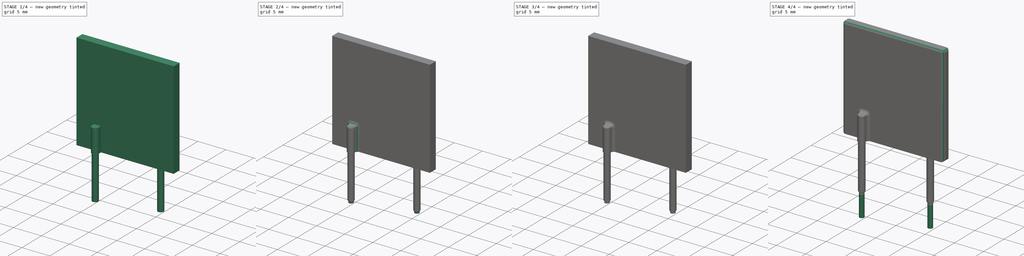
[diagram: build sequence overview — one tinted view per stage of 4, left to right]
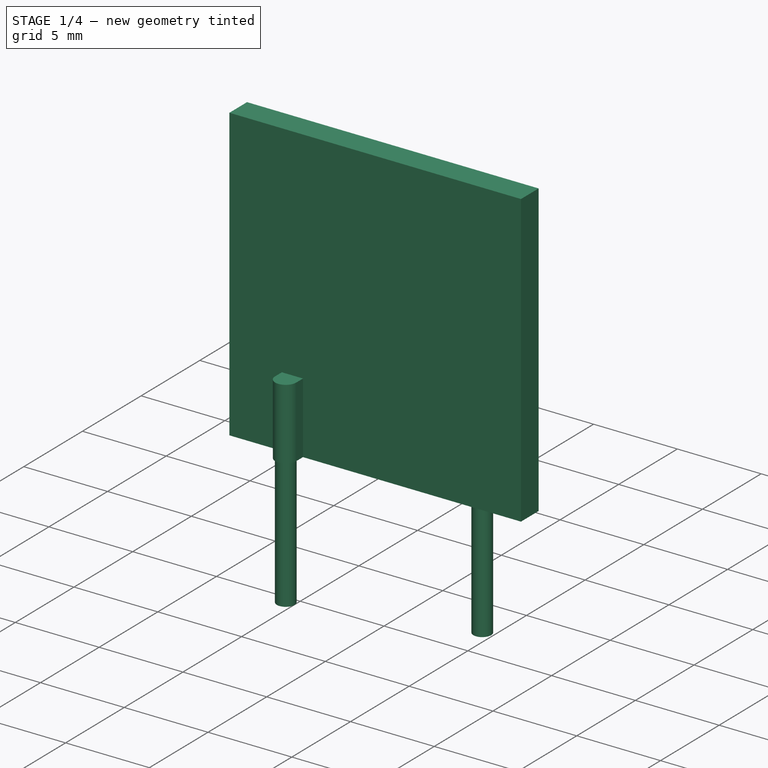
[diagram: stage 1 of 4 — iso view after this stage's code; geometry added in this stage tinted green]
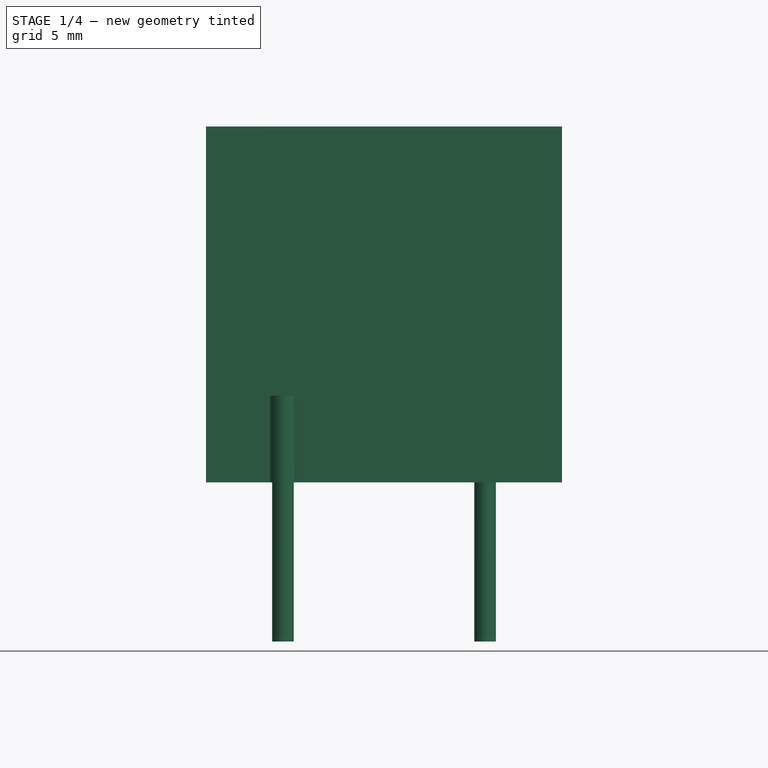
[diagram: stage 1 of 4 — front view after this stage's code; geometry added in this stage tinted green]
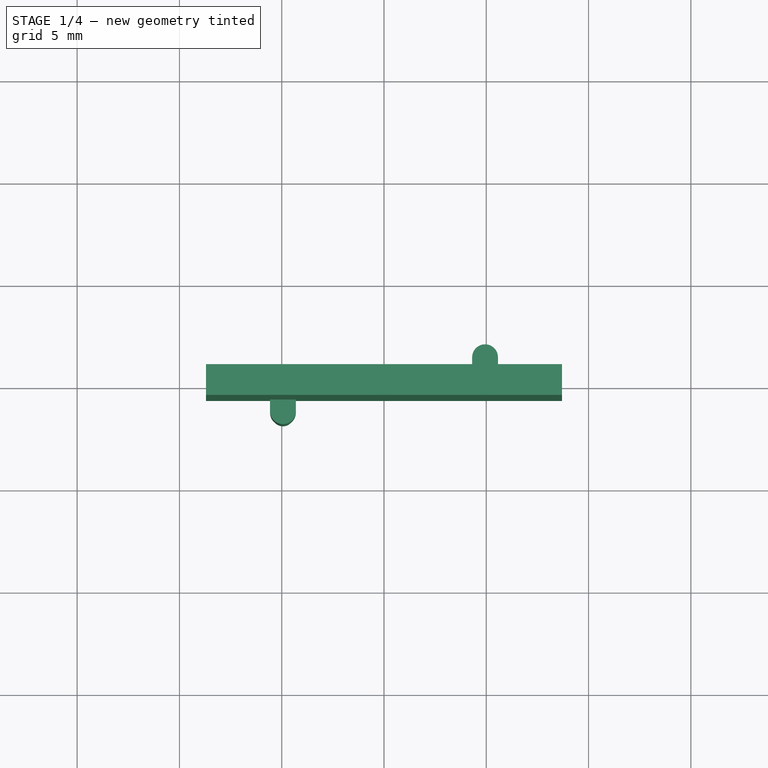
[diagram: stage 1 of 4 — top view after this stage's code; geometry added in this stage tinted green]
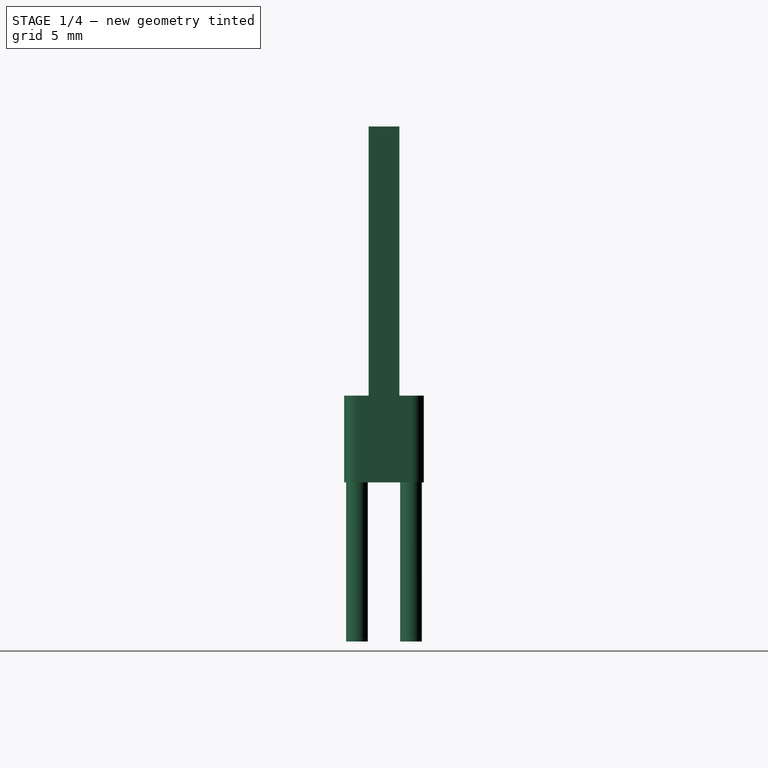
[diagram: stage 1 of 4 — right view after this stage's code; geometry added in this stage tinted green]
FCSTD DOCUMENT  (FreeCAD 0.14R3702 (Git))
Label: fuse-MF-R500
License: CC-BY 3.0
LicenseURL: http://creativecommons.org/licenses/by/3.0/
objects: Part::Fillet×6, Sketcher::SketchObject×5, PartDesign::Pad×5, Part::Feature×1
note: 22 computed .brp shape members not serialized (recipe doc carries the construction recipe); baked Part::Feature solids carry a one-line shape summary decoded from their .brp

FEATURE [Sketcher::SketchObject] Sketch  label="fuse-body-sketch"
  Placement = pos=(0,0,0) rot=(1,0,0;1.5708rad)
  sketch-geometry (4):
    g0: LineSegment StartX=-8.7 StartY=25.18 StartZ=0 EndX=8.7 EndY=25.18 EndZ=0
    g1: LineSegment StartX=8.7 StartY=25.18 StartZ=0 EndX=8.7 EndY=7.78 EndZ=0
    g2: LineSegment StartX=8.7 StartY=7.78 StartZ=0 EndX=-8.7 EndY=7.78 EndZ=0
    g3: LineSegment StartX=-8.7 StartY=7.78 StartZ=0 EndX=-8.7 EndY=25.18 EndZ=0
  constraints (12):
    c: Coincident(g0,g1)
    c: Coincident(g1,g2)
    c: Coincident(g2,g3)
    c: Coincident(g3,g0)
    c: Horizontal(g0)
    c: Horizontal(g2)
    c: Vertical(g1)
    c: Vertical(g3)
    c: Symmetric(g0,g0,g-2)
    c: Equal(g3,g0)
    c: DistanceX(g0) = 17.4
    c: DistanceY(g-1,g1) = 7.78
FEATURE [PartDesign::Pad] Pad  label="fuse-body"
  Length = 1.5
  Length2 = 100
  Midplane = true
  Placement = pos=(0,0,0) rot=(1,0,0;1.5708rad)
  Sketch = -> Sketch
  Type = 0
FEATURE [Sketcher::SketchObject] Sketch001  label="pin-base-sketch"
  ExternalGeometry = -> [Pad]
  Placement = pos=(0,0,7.78) rot=(1,0,0;3.14159rad)
  Support = -> Pad [Face3]
  sketch-geometry (10):
    g0: LineSegment [constr] StartX=-4.31 StartY=1.32 StartZ=0 EndX=-5.57 EndY=1.32 EndZ=0
    g1: LineSegment StartX=-5.57 StartY=1.32 StartZ=0 EndX=-5.57 EndY=0.75 EndZ=0
    g2: LineSegment StartX=-4.31 StartY=1.32 StartZ=0 EndX=-4.31 EndY=0.75 EndZ=0
    g3: LineSegment StartX=-5.57 StartY=0.75 StartZ=0 EndX=-4.31 EndY=0.75 EndZ=0
    g4: ArcOfCircle CenterX=-4.94 CenterY=1.32 CenterZ=0 NormalX=0 NormalY=0 NormalZ=1 Radius=0.63 StartAngle=0 EndAngle=3.14159
    g5: LineSegment StartX=4.31 StartY=-0.75 StartZ=0 EndX=5.57 EndY=-0.75 EndZ=0
    g6: LineSegment StartX=5.57 StartY=-0.75 StartZ=0 EndX=5.57 EndY=-1.32 EndZ=0
    g7: LineSegment [constr] StartX=5.57 StartY=-1.32 StartZ=0 EndX=4.31 EndY=-1.32 EndZ=0
    g8: LineSegment StartX=4.31 StartY=-1.32 StartZ=0 EndX=4.31 EndY=-0.75 EndZ=0
    g9: ArcOfCircle CenterX=4.94 CenterY=-1.32 CenterZ=0 NormalX=0 NormalY=0 NormalZ=1 Radius=0.63 StartAngle=3.14159 EndAngle=6.28319
  constraints (29):
    c: Horizontal(g0)
    c: Vertical(g1)
    c: PointOnObject(g1,g-3)
    c: Vertical(g2)
    c: PointOnObject(g2,g-3)
    c: Horizontal(g3)
    c: Coincident(g3,g2)
    c: Coincident(g3,g1)
    c: Coincident(g0,g1)
    c: Coincident(g0,g2)
    c: DistanceX(g-1,g2) = -4.31
    c: PointOnObject(g4,g0)
    c: Coincident(g4,g0)
    c: Coincident(g0,g4)
    c: Radius(g4) = 0.63
    c: DistanceY(g2) = -0.57
    c: Coincident(g5,g6)
    c: Coincident(g6,g7)
    c: Coincident(g7,g8)
    c: Coincident(g8,g5)
    c: Horizontal(g5)
    c: Horizontal(g7)
    c: Vertical(g6)
    c: Vertical(g8)
    c: Symmetric(g5,g2,g-1)
    c: Symmetric(g7,g0,g-1)
    c: Symmetric(g4,g9,g-1)
    c: Coincident(g7,g9)
    c: Coincident(g9,g6)
FEATURE [PartDesign::Pad] Pad001  label="pin-base"
  Length = 4.24
  Length2 = 100
  Placement = pos=(0,0,0) rot=(1,0,0;1.5708rad)
  Reversed = true
  Sketch = -> Sketch001
  Type = 0
FEATURE [Sketcher::SketchObject] Sketch002  label="pin-base2-sketch"
  ExternalGeometry = -> [Pad001]
  Placement = pos=(0,0,7.78) rot=(1,0,0;3.14159rad)
  Support = -> Pad001 [Face14]
  sketch-geometry (2):
    g0: Circle CenterX=-4.94 CenterY=1.32 CenterZ=0 NormalX=0 NormalY=0 NormalZ=1 Radius=0.53
    g1: Circle CenterX=4.94 CenterY=-1.32 CenterZ=0 NormalX=0 NormalY=0 NormalZ=1 Radius=0.53
  constraints (4):
    c: Coincident(g-3,g0)
    c: Radius(g0) = 0.53
    c: Equal(g1,g0)
    c: Symmetric(g1,g0,g-1)
FEATURE [PartDesign::Pad] Pad002  label="pin-base2"
  Length = 7.78
  Length2 = 100
  Placement = pos=(0,0,0) rot=(1,0,0;1.5708rad)
  Sketch = -> Sketch002
  Type = 0
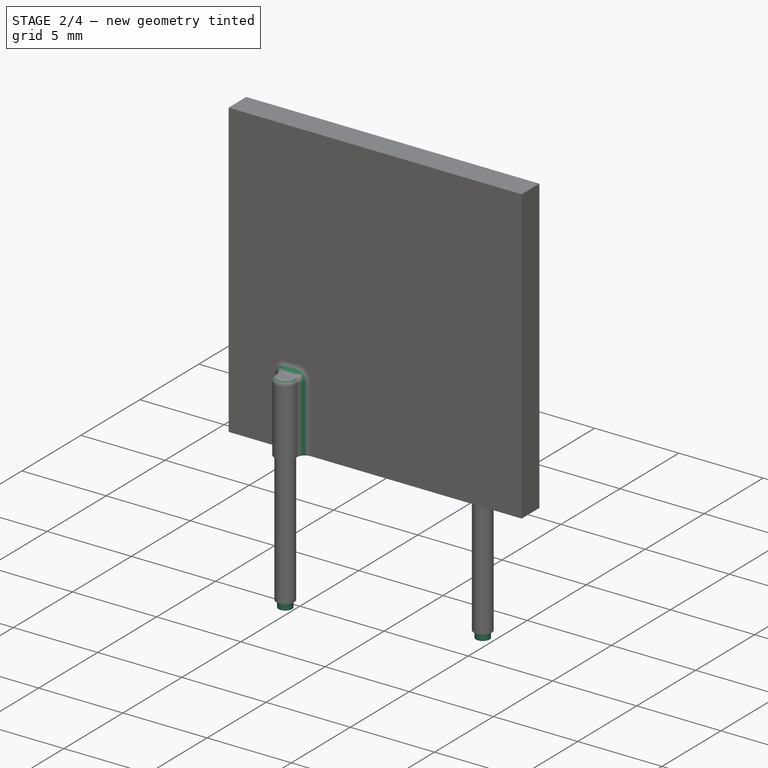
[diagram: stage 2 of 4 — iso view after this stage's code; geometry added in this stage tinted green]
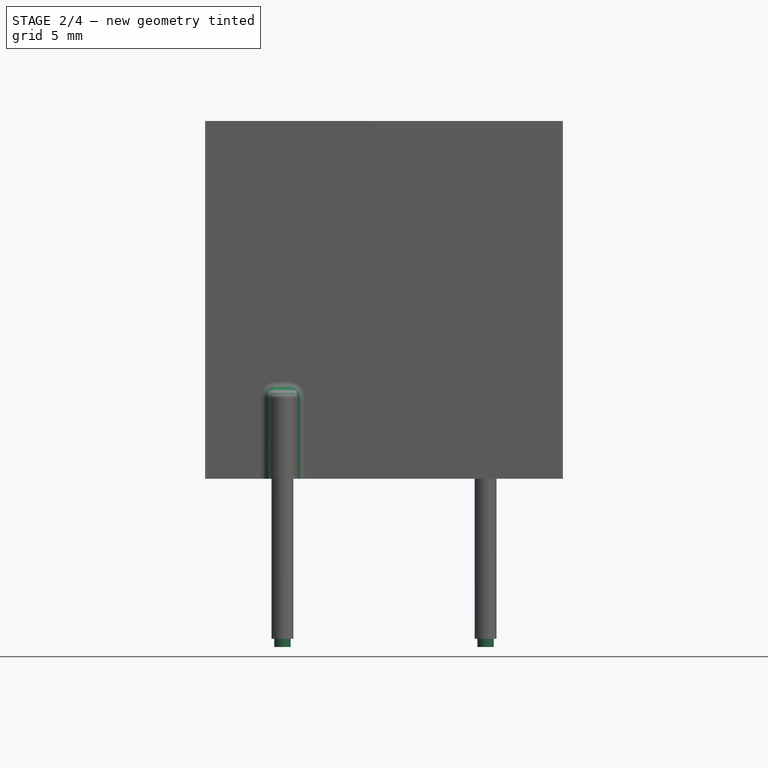
[diagram: stage 2 of 4 — front view after this stage's code; geometry added in this stage tinted green]
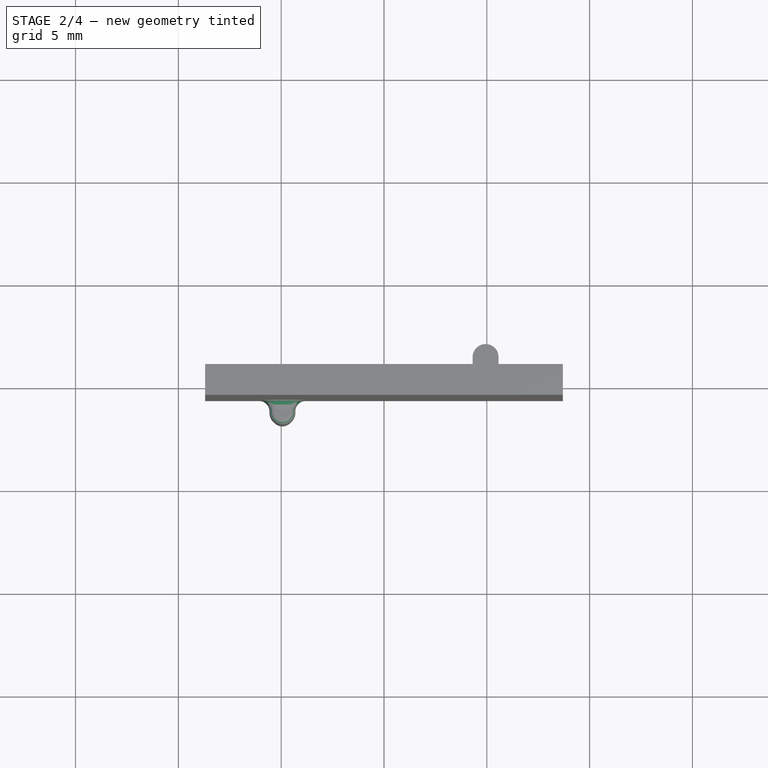
[diagram: stage 2 of 4 — top view after this stage's code; geometry added in this stage tinted green]
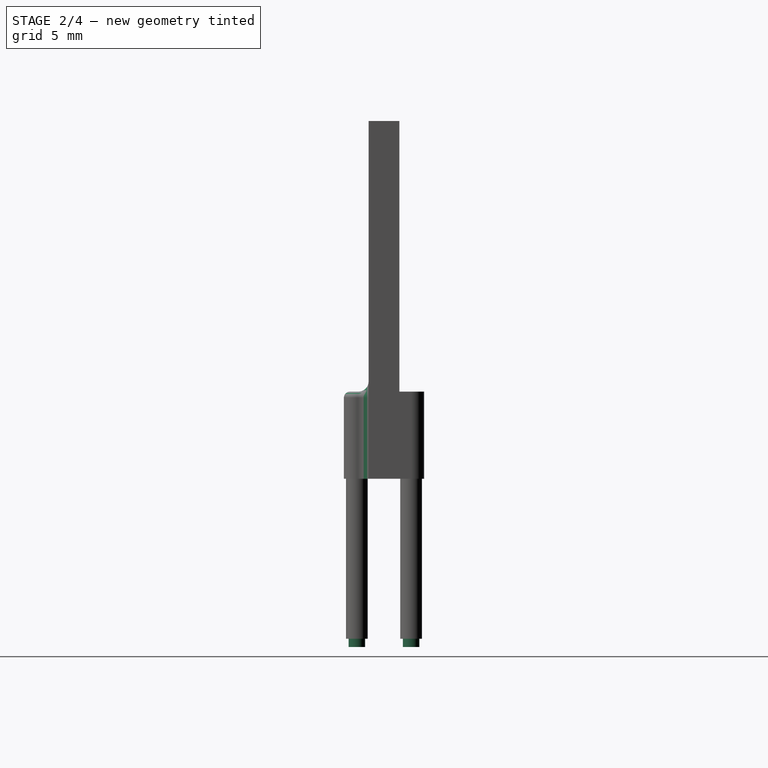
[diagram: stage 2 of 4 — right view after this stage's code; geometry added in this stage tinted green]
FEATURE [Sketcher::SketchObject] Sketch003  label="pin-base-3-sketch"
  ExternalGeometry = -> [Pad002]
  Placement = pos=(0,0,0) rot=(1,0,0;3.14159rad)
  Support = -> Pad002 [Face17]
  sketch-geometry (2):
    g0: Circle CenterX=-4.94 CenterY=1.32 CenterZ=0 NormalX=0 NormalY=0 NormalZ=1 Radius=0.4
    g1: Circle CenterX=4.94 CenterY=-1.32 CenterZ=0 NormalX=0 NormalY=0 NormalZ=1 Radius=0.4
  constraints (4):
    c: Radius(g0) = 0.4
    c: Coincident(g0,g-3)
    c: Symmetric(g1,g0,g-1)
    c: Equal(g0,g1)
FEATURE [PartDesign::Pad] Pad003  label="pin-base-3"
  Length = 0.4
  Length2 = 100
  Placement = pos=(0,0,0) rot=(1,0,0;1.5708rad)
  Sketch = -> Sketch003
  Type = 0
FEATURE [Part::Fillet] Fillet
  Base = -> Pad003
  Edges = 3 edges r=0.3: [Edge35,Edge36,Edge37]
FEATURE [Part::Fillet] Fillet001
  Base = -> Fillet
  Edges = 5 edges r=0.5: [Edge1,Edge2,Edge4,Edge6,Edge8]
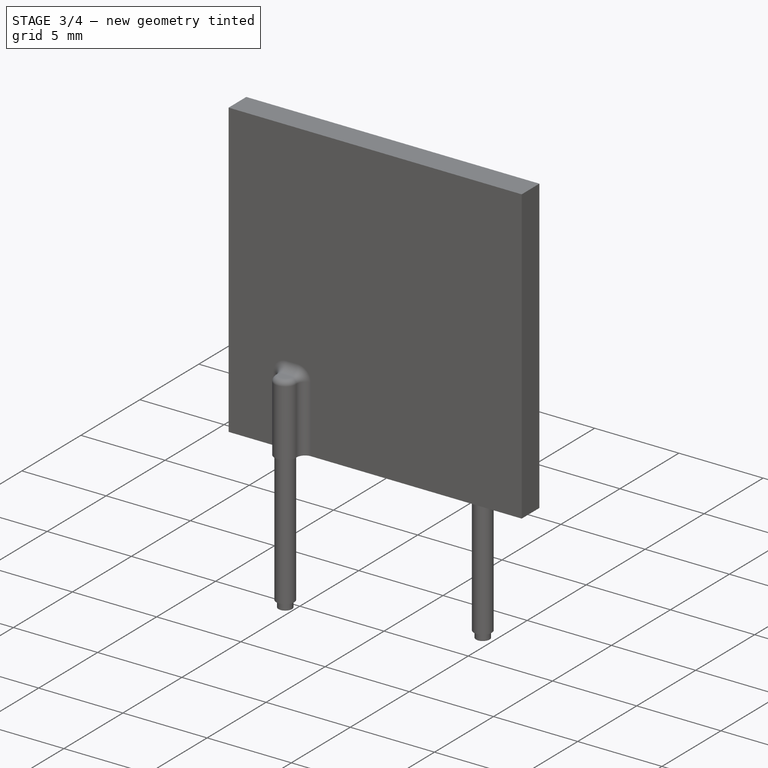
[diagram: stage 3 of 4 — iso view after this stage's code; geometry added in this stage tinted green]
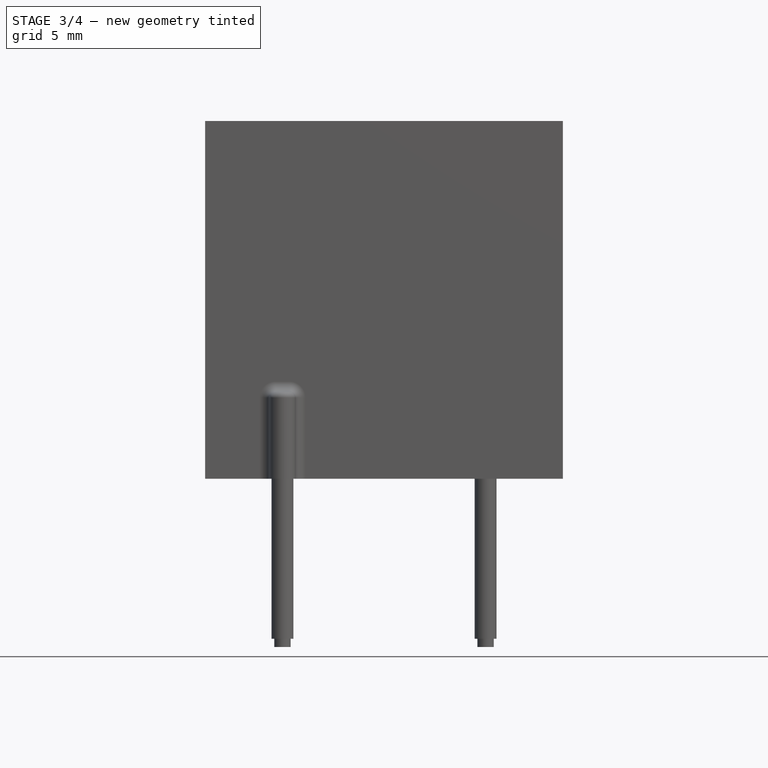
[diagram: stage 3 of 4 — front view after this stage's code; geometry added in this stage tinted green]
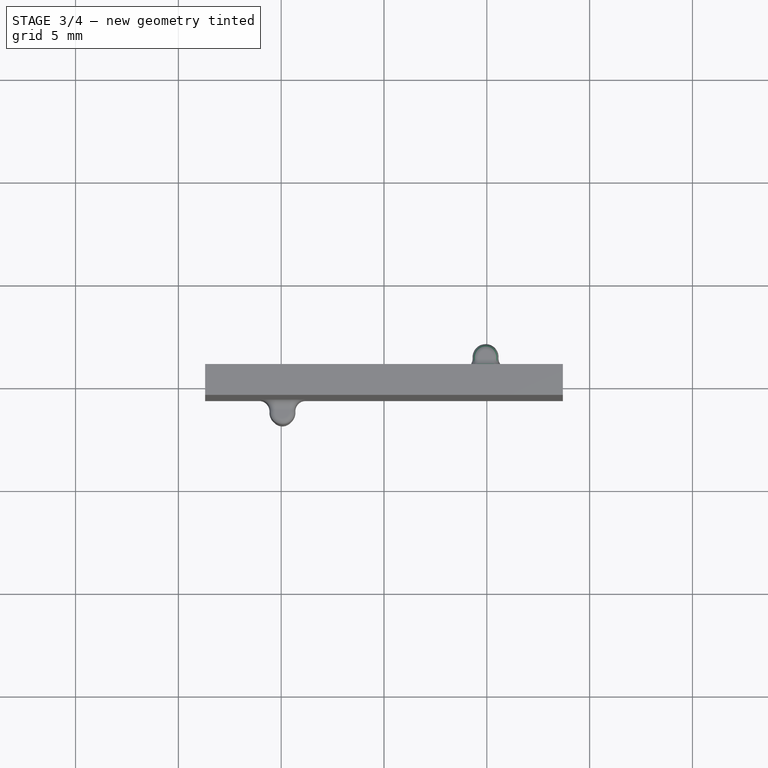
[diagram: stage 3 of 4 — top view after this stage's code; geometry added in this stage tinted green]
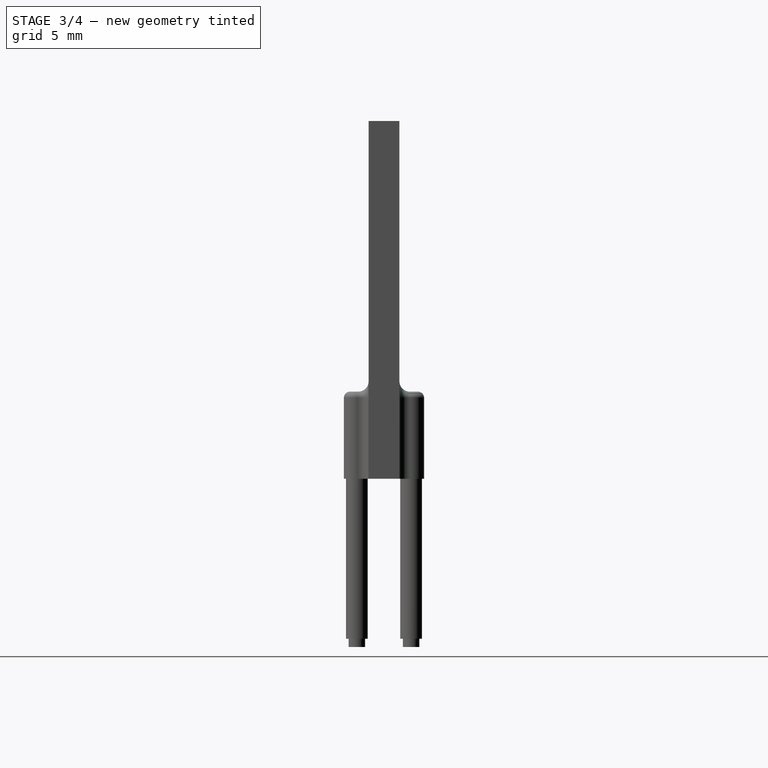
[diagram: stage 3 of 4 — right view after this stage's code; geometry added in this stage tinted green]
FEATURE [Part::Fillet] Fillet002
  Base = -> Fillet001
  Edges = 3 edges r=0.3: [Edge46,Edge50,Edge51]
FEATURE [Part::Fillet] Fillet003
  Base = -> Fillet002
  Edges = 5 edges r=0.5: [Edge1,Edge2,Edge4,Edge6,Edge8]
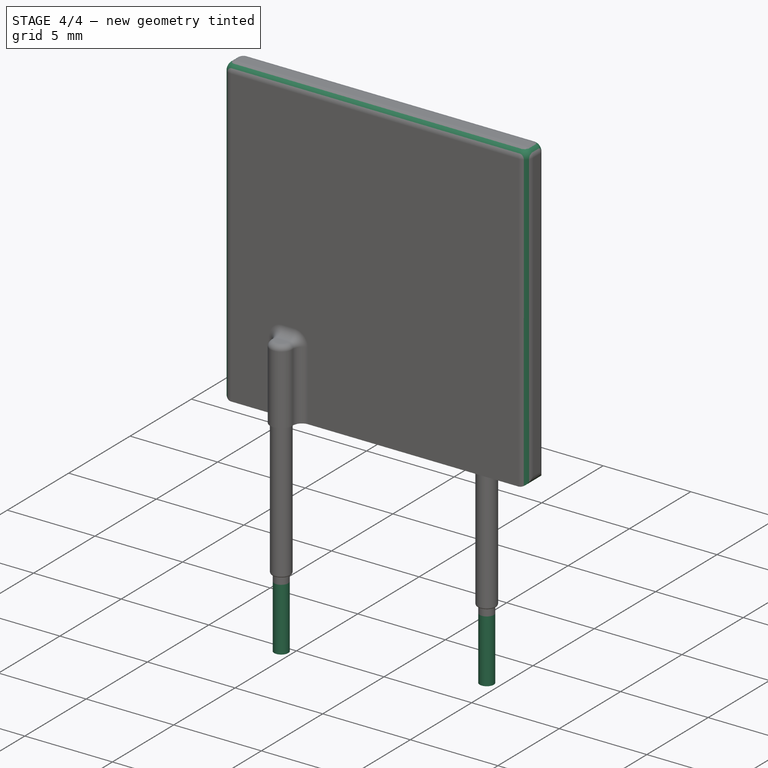
[diagram: stage 4 of 4 — iso view after this stage's code; geometry added in this stage tinted green]
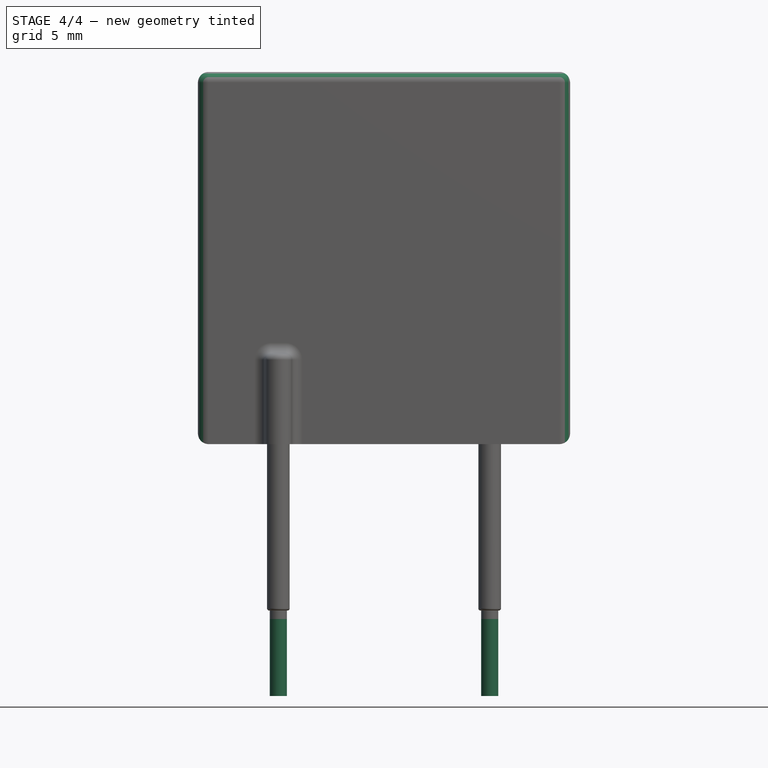
[diagram: stage 4 of 4 — front view after this stage's code; geometry added in this stage tinted green]
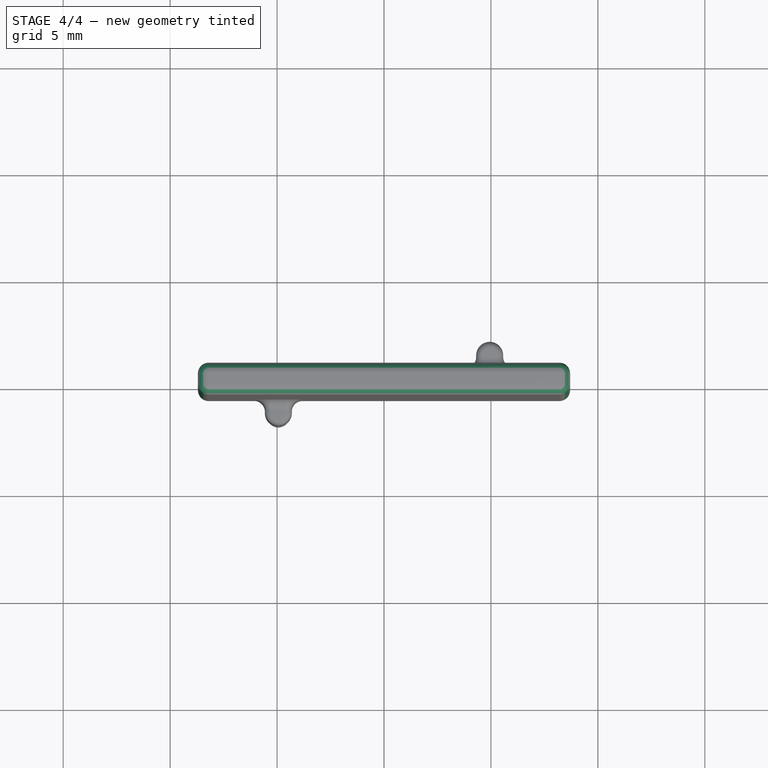
[diagram: stage 4 of 4 — top view after this stage's code; geometry added in this stage tinted green]
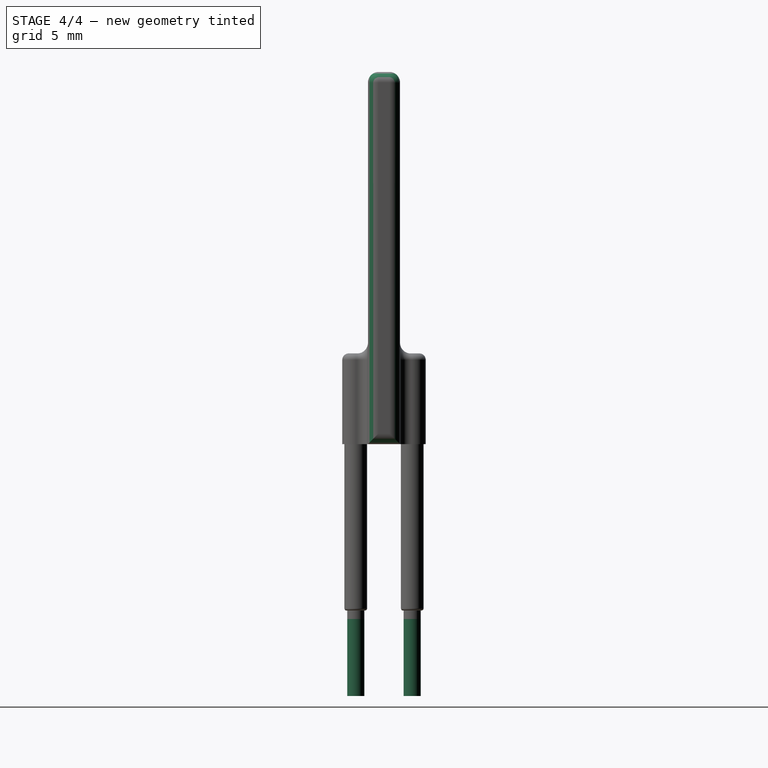
[diagram: stage 4 of 4 — right view after this stage's code; geometry added in this stage tinted green]
FEATURE [Part::Fillet] Fillet004
  Base = -> Fillet003
  Edges = 10 edges r=0.5: [Edge3,Edge5,Edge7,Edge12,Edge22,Edge29,Edge30,Edge33,Edge34,Edge37]
FEATURE [Part::Fillet] Fillet005
  Base = -> Fillet004
  Edges = 2 edges r=0.1: [Edge72,Edge74]
FEATURE [Sketcher::SketchObject] Sketch004
  ExternalGeometry = -> [Fillet005]
  Placement = pos=(0,0,-0.4) rot=(1,0,0;3.14159rad)
  Support = -> Fillet005 [Face54]
  sketch-geometry (2):
    g0: Circle CenterX=-4.94 CenterY=1.32 CenterZ=0 NormalX=0 NormalY=0 NormalZ=1 Radius=0.4
    g1: Circle CenterX=4.94 CenterY=-1.32 CenterZ=0 NormalX=0 NormalY=0 NormalZ=1 Radius=0.4
  constraints (4):
    c: Coincident(g0,g-3)
    c: Equal(g0,g-3)
    c: Symmetric(g1,g0,g-1)
    c: Equal(g1,g0)
FEATURE [PartDesign::Pad] Pad004
  Length = 3.6
  Length2 = 100
  Sketch = -> Sketch004
  Type = 0
FEATURE [Part::Feature] Pad005  label="fuse-MR-R500-final"
  shape: bbox 17.4 x 4.004 x 29.18 mm, 56 faces (baked)
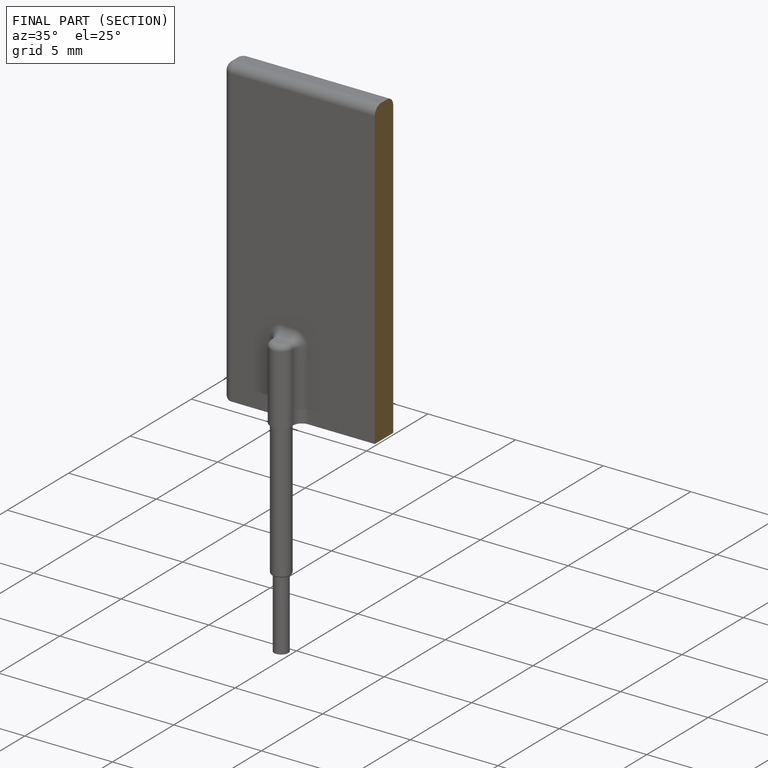
[diagram: finished part — half-section view (interior)]
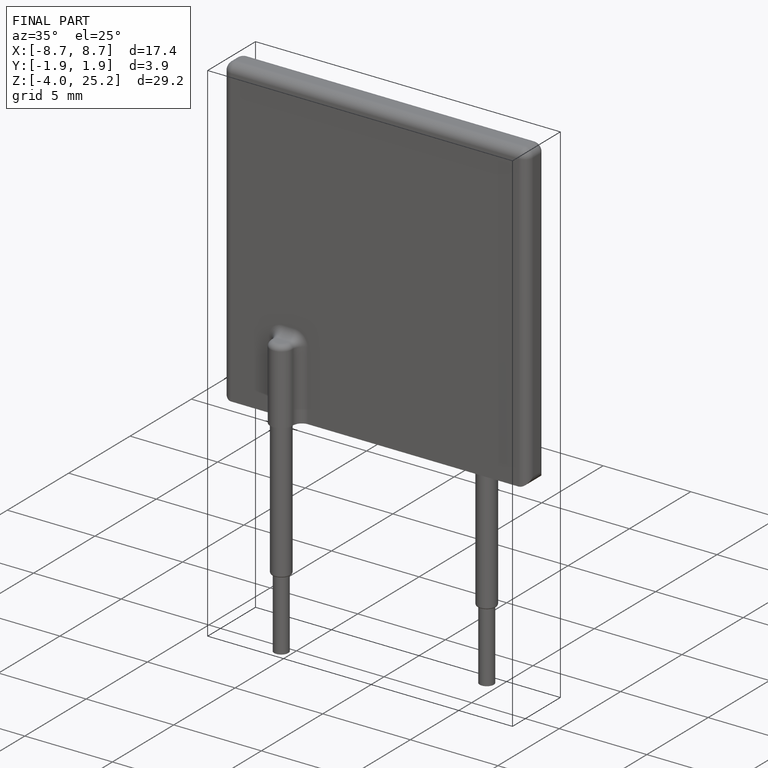
[diagram: finished part — iso view with bounding-box wireframe]
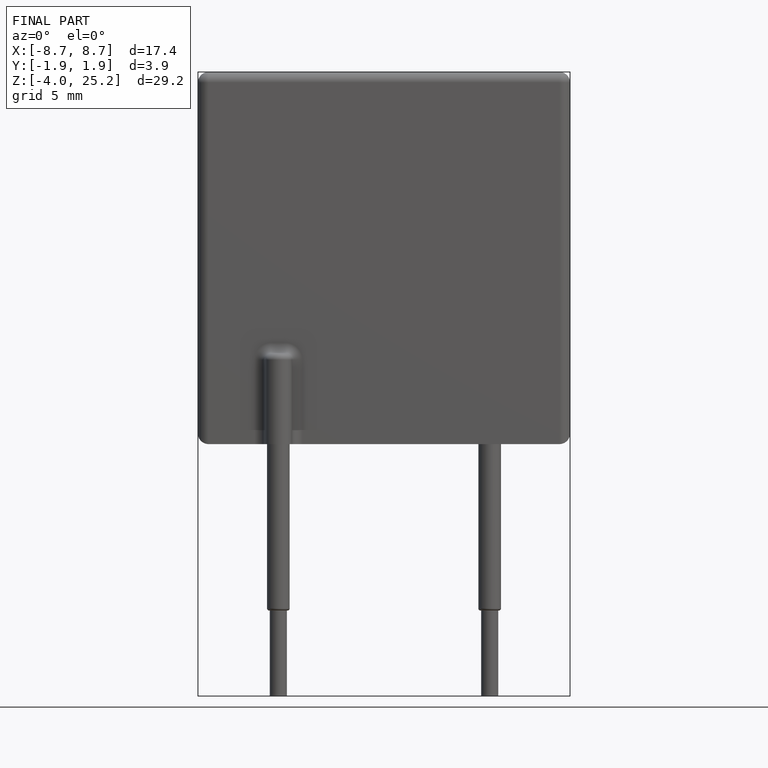
[diagram: finished part — front view with bounding-box wireframe]
